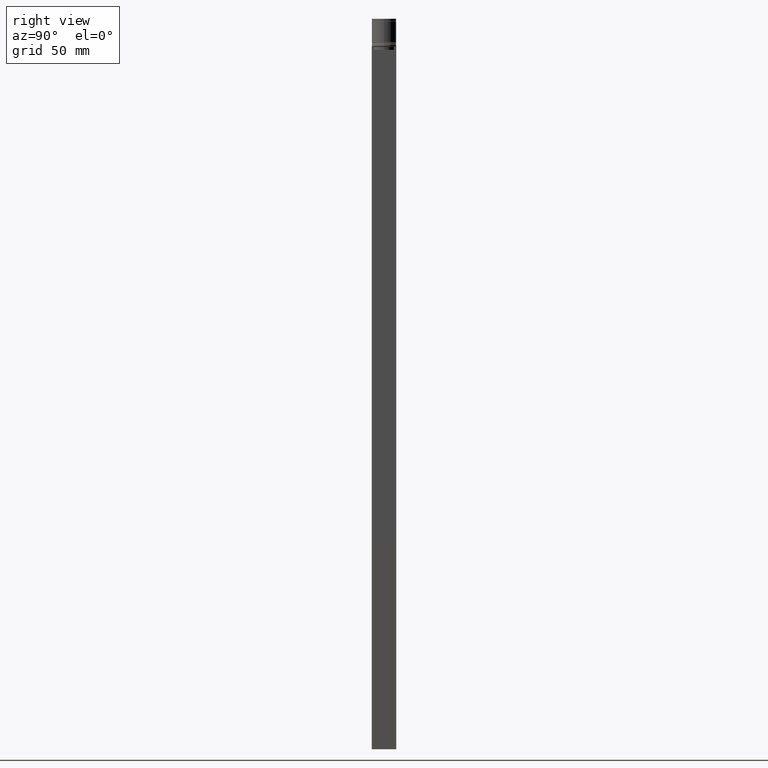
[diagram: clean part render]
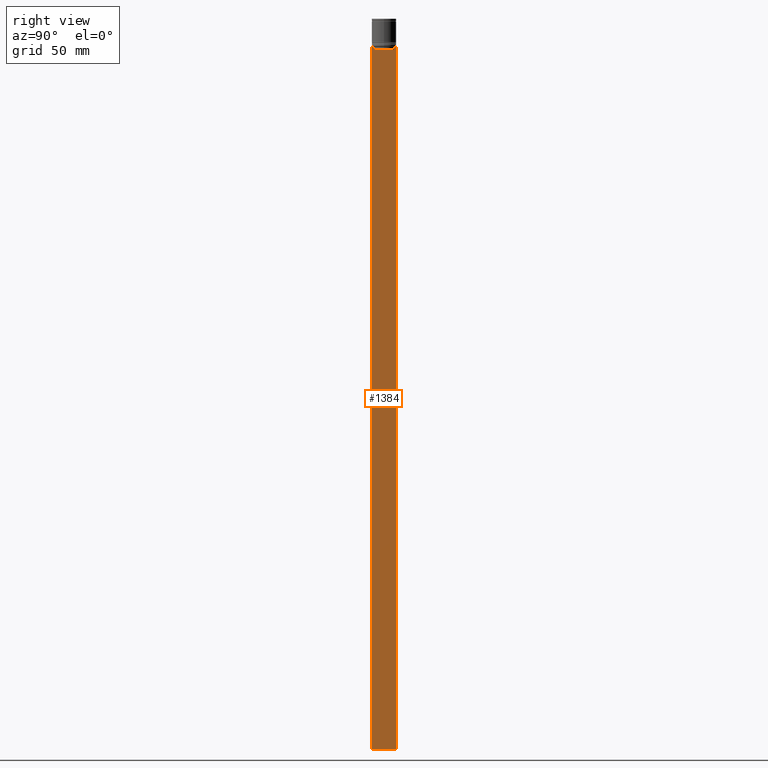
[diagram: same view with one face highlighted and labeled with its STEP entity id]
A machine part, right view. The second image highlights one B-rep face of the part: STEP entity #1384.
In plain terms, the highlighted planar face has unit normal (-1, 0, 0).
Its self-contained STEP definition (entity closure, byte-faithful):
#25 = DIRECTION ( 'NONE',  ( 0.000000000000000000, 0.000000000000000000, -1.000000000000000000 ) ) ;
#33 = CARTESIAN_POINT ( 'NONE',  ( 0.5000000000000000000, -8.385105843100610912, -23.00000000000000000 ) ) ;
#41 = VERTEX_POINT ( 'NONE', #928 ) ;
#46 = CARTESIAN_POINT ( 'NONE',  ( 0.5000000000000000000, 8.385105843100610912, -23.00000000000000000 ) ) ;
#60 = ORIENTED_EDGE ( 'NONE', *, *, #92, .T. ) ;
#62 = ORIENTED_EDGE ( 'NONE', *, *, #321, .T. ) ;
#92 = EDGE_CURVE ( 'NONE', #1721, #480, #1626, .T. ) ;
#116 = VECTOR ( 'NONE', #1136, 1000.000000000000000 ) ;
#147 = ORIENTED_EDGE ( 'NONE', *, *, #1914, .T. ) ;
#172 = VERTEX_POINT ( 'NONE', #536 ) ;
#177 = ORIENTED_EDGE ( 'NONE', *, *, #2077, .T. ) ;
#187 = ORIENTED_EDGE ( 'NONE', *, *, #1911, .T. ) ;
#217 = DIRECTION ( 'NONE',  ( 0.000000000000000000, -1.000000000000000000, 0.000000000000000000 ) ) ;
#222 = VECTOR ( 'NONE', #1158, 1000.000000000000000 ) ;
#242 = LINE ( 'NONE', #878, #1267 ) ;
#244 = VECTOR ( 'NONE', #1576, 1000.000000000000000 ) ;
#263 = DIRECTION ( 'NONE',  ( -0.000000000000000000, -0.000000000000000000, 1.000000000000000000 ) ) ;
#271 = DIRECTION ( 'NONE',  ( -1.000000000000000000, 0.000000000000000000, 0.000000000000000000 ) ) ;
#284 = ORIENTED_EDGE ( 'NONE', *, *, #1411, .T. ) ;
#286 = VERTEX_POINT ( 'NONE', #775 ) ;
#321 = EDGE_CURVE ( 'NONE', #1934, #286, #917, .T. ) ;
#332 = LINE ( 'NONE', #1139, #1502 ) ;
#334 = CARTESIAN_POINT ( 'NONE',  ( 0.5000000000000000000, -10.00000000000000178, -596.4999999999998863 ) ) ;
#343 = CARTESIAN_POINT ( 'NONE',  ( 0.5000000000000000000, 8.552060201981371179, -22.83334167021640582 ) ) ;
#377 = CARTESIAN_POINT ( 'NONE',  ( 0.5000000000000000000, 9.999999999999998224, -2.475015605499213844 ) ) ;
#480 = VERTEX_POINT ( 'NONE', #560 ) ;
#485 = CARTESIAN_POINT ( 'NONE',  ( 0.5000000000000000000, 8.719005771582343911, -22.66667453442325453 ) ) ;
#487 = ORIENTED_EDGE ( 'NONE', *, *, #599, .F. ) ;
#494 = CARTESIAN_POINT ( 'NONE',  ( 0.5000000000000000000, 8.385105843100610912, -23.00000000000000000 ) ) ;
#503 = LINE ( 'NONE', #1644, #222 ) ;
#524 = CARTESIAN_POINT ( 'NONE',  ( 0.5000000000000000000, -10.00000000000000178, -22.50000000000000000 ) ) ;
#536 = CARTESIAN_POINT ( 'NONE',  ( 0.5000000000000000000, -9.887365675446622149, -22.50000000000000000 ) ) ;
#553 = ORIENTED_EDGE ( 'NONE', *, *, #942, .T. ) ;
#560 = CARTESIAN_POINT ( 'NONE',  ( 0.5000000000000000000, 9.887365675446622149, -22.50000000000000000 ) ) ;
#581 = LINE ( 'NONE', #1719, #1425 ) ;
#583 = PLANE ( 'NONE',  #1395 ) ;
#599 = EDGE_CURVE ( 'NONE', #1721, #2035, #1983, .T. ) ;
#625 = ORIENTED_EDGE ( 'NONE', *, *, #1094, .T. ) ;
#700 = CARTESIAN_POINT ( 'NONE',  ( 0.5000000000000000000, -10.00000000000000178, -2.475015605499213844 ) ) ;
#720 = DIRECTION ( 'NONE',  ( 0.000000000000000000, -1.000000000000000000, 0.000000000000000000 ) ) ;
#736 = EDGE_CURVE ( 'NONE', #2008, #1624, #581, .T. ) ;
#775 = CARTESIAN_POINT ( 'NONE',  ( 0.5000000000000000000, 8.385105843100610912, -25.50000000000000000 ) ) ;
#878 = CARTESIAN_POINT ( 'NONE',  ( 0.5000000000000000000, -10.00000000000000178, -22.50000000000000000 ) ) ;
#909 = VECTOR ( 'NONE', #1317, 1000.000000000000000 ) ;
#914 = DIRECTION ( 'NONE',  ( 0.000000000000000000, 0.000000000000000000, 1.000000000000000000 ) ) ;
#917 = LINE ( 'NONE', #1594, #244 ) ;
#928 = CARTESIAN_POINT ( 'NONE',  ( 0.5000000000000000000, -10.00000000000000178, -22.50000000000000000 ) ) ;
#942 = EDGE_CURVE ( 'NONE', #172, #41, #503, .T. ) ;
#1005 = CARTESIAN_POINT ( 'NONE',  ( 0.5000000000000000000, -8.385105843100610912, -23.00000000000000000 ) ) ;
#1074 = EDGE_CURVE ( 'NONE', #1432, #2035, #1585, .T. ) ;
#1076 = CARTESIAN_POINT ( 'NONE',  ( 0.5000000000000000000, -10.00000000000000178, -2.475015605499213844 ) ) ;
#1094 = EDGE_CURVE ( 'NONE', #1621, #172, #1265, .T. ) ;
#1136 = DIRECTION ( 'NONE',  ( 0.000000000000000000, 1.000000000000000000, 0.000000000000000000 ) ) ;
#1139 = CARTESIAN_POINT ( 'NONE',  ( 0.5000000000000000000, 8.400000000000000355, -25.50000000000000000 ) ) ;
#1158 = DIRECTION ( 'NONE',  ( 0.000000000000000000, -1.000000000000000000, 0.000000000000000000 ) ) ;
#1161 = CARTESIAN_POINT ( 'NONE',  ( 0.5000000000000000000, -8.719005764482785636, -22.66667454151159333 ) ) ;
#1236 = CARTESIAN_POINT ( 'NONE',  ( 0.5000000000000000000, 9.999999999999998224, -596.4999999999998863 ) ) ;
#1265 = LINE ( 'NONE', #2056, #1569 ) ;
#1267 = VECTOR ( 'NONE', #720, 1000.000000000000000 ) ;
#1317 = DIRECTION ( 'NONE',  ( 0.000000000000000000, -1.000000000000000000, 0.000000000000000000 ) ) ;
#1335 = EDGE_LOOP ( 'NONE', ( #177, #2029, #62, #147, #2069, #187, #625, #553, #284, #1551, #487, #60 ) ) ;
#1384 = ADVANCED_FACE ( 'NONE', ( #2037 ), #583, .F. ) ;
#1395 = AXIS2_PLACEMENT_3D ( 'NONE', #1076, #271, #914 ) ;
#1411 = EDGE_CURVE ( 'NONE', #41, #1432, #1572, .T. ) ;
#1425 = VECTOR ( 'NONE', #263, 1000.000000000000000 ) ;
#1432 = VERTEX_POINT ( 'NONE', #334 ) ;
#1434 = VERTEX_POINT ( 'NONE', #1632 ) ;
#1471 = DIRECTION ( 'NONE',  ( 0.000000000000000000, 0.000000000000000000, -1.000000000000000000 ) ) ;
#1496 = VECTOR ( 'NONE', #25, 1000.000000000000000 ) ;
#1502 = VECTOR ( 'NONE', #217, 1000.000000000000000 ) ;
#1511 = CARTESIAN_POINT ( 'NONE',  ( 0.5000000000000000000, -8.885943956609226646, -22.50000000000000000 ) ) ;
#1551 = ORIENTED_EDGE ( 'NONE', *, *, #1074, .T. ) ;
#1569 = VECTOR ( 'NONE', #1753, 1000.000000000000000 ) ;
#1572 = LINE ( 'NONE', #700, #1843 ) ;
#1576 = DIRECTION ( 'NONE',  ( 0.000000000000000000, 0.000000000000000000, -1.000000000000000000 ) ) ;
#1585 = LINE ( 'NONE', #1625, #116 ) ;
#1594 = CARTESIAN_POINT ( 'NONE',  ( 0.5000000000000000000, 8.385105843100610912, 0.000000000000000000 ) ) ;
#1599 = CARTESIAN_POINT ( 'NONE',  ( 0.5000000000000000000, 9.999999999999998224, -22.50000000000000000 ) ) ;
#1621 = VERTEX_POINT ( 'NONE', #1511 ) ;
#1624 = VERTEX_POINT ( 'NONE', #1005 ) ;
#1625 = CARTESIAN_POINT ( 'NONE',  ( 0.5000000000000000000, -10.00000000000000178, -596.4999999999998863 ) ) ;
#1626 = LINE ( 'NONE', #524, #909 ) ;
#1632 = CARTESIAN_POINT ( 'NONE',  ( 0.5000000000000000000, 8.885943956609226646, -22.50000000000000000 ) ) ;
#1644 = CARTESIAN_POINT ( 'NONE',  ( 0.5000000000000000000, -10.00000000000000178, -22.50000000000000000 ) ) ;
#1719 = CARTESIAN_POINT ( 'NONE',  ( 0.5000000000000000000, -8.385105843100610912, 0.000000000000000000 ) ) ;
#1721 = VERTEX_POINT ( 'NONE', #1599 ) ;
#1753 = DIRECTION ( 'NONE',  ( 0.000000000000000000, -1.000000000000000000, 0.000000000000000000 ) ) ;
#1816 = CARTESIAN_POINT ( 'NONE',  ( 0.5000000000000000000, -8.885943956609226646, -22.50000000000000000 ) ) ;
#1843 = VECTOR ( 'NONE', #1471, 1000.000000000000000 ) ;
#1857 = B_SPLINE_CURVE_WITH_KNOTS ( 'NONE', 3,
 ( #33, #1960, #1161, #1816 ),
 .UNSPECIFIED., .F., .F.,
 ( 4, 4 ),
 ( 0.03898465126933124691, 0.03969388910599652709 ),
 .UNSPECIFIED. ) ;
#1872 = EDGE_CURVE ( 'NONE', #1434, #1934, #1979, .T. ) ;
#1911 = EDGE_CURVE ( 'NONE', #1624, #1621, #1857, .T. ) ;
#1914 = EDGE_CURVE ( 'NONE', #286, #2008, #332, .T. ) ;
#1934 = VERTEX_POINT ( 'NONE', #46 ) ;
#1950 = CARTESIAN_POINT ( 'NONE',  ( 0.5000000000000000000, 8.885943956609226646, -22.50000000000000000 ) ) ;
#1960 = CARTESIAN_POINT ( 'NONE',  ( 0.5000000000000000000, -8.552060194457766329, -22.83334167772666845 ) ) ;
#1979 = B_SPLINE_CURVE_WITH_KNOTS ( 'NONE', 3,
 ( #1950, #485, #343, #494 ),
 .UNSPECIFIED., .F., .F.,
 ( 4, 4 ),
 ( 0.01511546479386905242, 0.01582316445439077568 ),
 .UNSPECIFIED. ) ;
#1983 = LINE ( 'NONE', #377, #1496 ) ;
#2003 = CARTESIAN_POINT ( 'NONE',  ( 0.5000000000000000000, -8.385105843100610912, -25.50000000000000000 ) ) ;
#2008 = VERTEX_POINT ( 'NONE', #2003 ) ;
#2029 = ORIENTED_EDGE ( 'NONE', *, *, #1872, .T. ) ;
#2035 = VERTEX_POINT ( 'NONE', #1236 ) ;
#2037 = FACE_OUTER_BOUND ( 'NONE', #1335, .T. ) ;
#2056 = CARTESIAN_POINT ( 'NONE',  ( 0.5000000000000000000, -10.00000000000000178, -22.50000000000000000 ) ) ;
#2069 = ORIENTED_EDGE ( 'NONE', *, *, #736, .T. ) ;
#2077 = EDGE_CURVE ( 'NONE', #480, #1434, #242, .T. ) ;